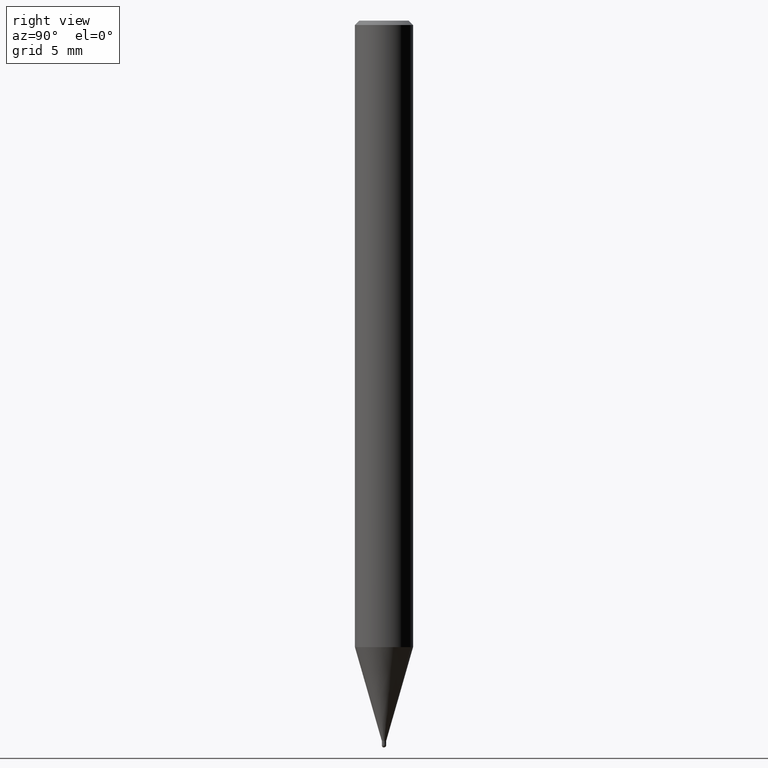
[diagram: clean part render]
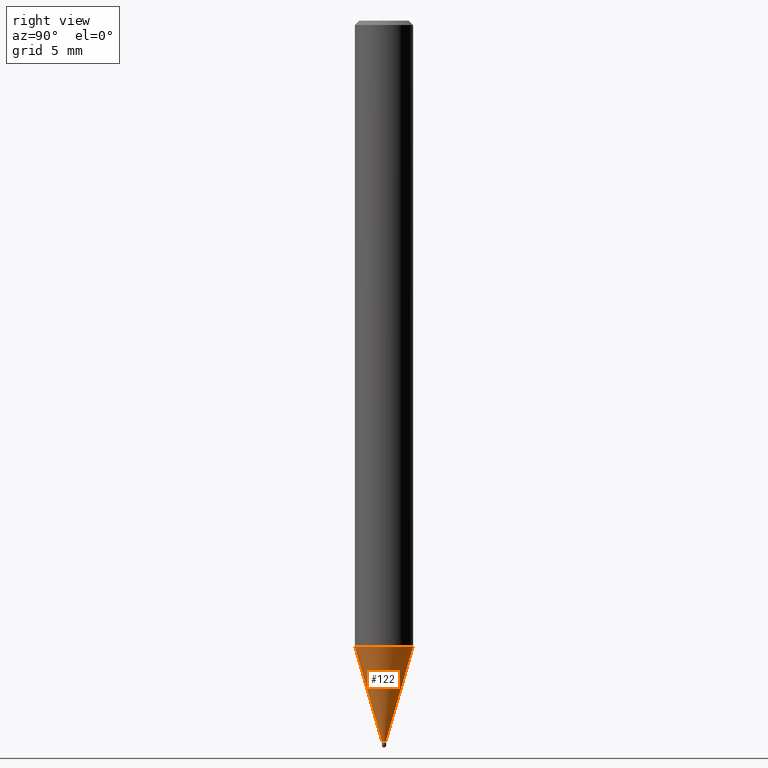
[diagram: same view with one face highlighted and labeled with its STEP entity id]
A machine part, right view. The second image highlights one B-rep face of the part: STEP entity #122.
In plain terms, the highlighted conical surface has half-angle 15.999 deg.
Its self-contained STEP definition (entity closure, byte-faithful):
#88=EDGE_CURVE('',#160,#112,#213,.T.);
#92=EDGE_CURVE('',#110,#160,#217,.T.);
#110=VERTEX_POINT('',#238);
#112=VERTEX_POINT('',#240);
#118=EDGE_CURVE('',#112,#162,#247,.T.);
#122=ADVANCED_FACE('',(#251),#252,.T.);
#160=VERTEX_POINT('',#297);
#162=VERTEX_POINT('',#299);
#180=EDGE_CURVE('',#110,#162,#319,.T.);
#213=CIRCLE('',#348,0.14995);
#217=LINE('',#353,#354);
#238=CARTESIAN_POINT('',(0.0,1.99995,-43.098));
#240=CARTESIAN_POINT('',(1.83629722755666E-017,-0.14995,-49.55));
#247=LINE('',#387,#388);
#251=FACE_OUTER_BOUND('',#393,.T.);
#252=CONICAL_SURFACE('',#394,1.07495,0.279241047070178);
#297=CARTESIAN_POINT('',(0.0,0.14995,-49.55));
#299=CARTESIAN_POINT('',(2.44915147732706E-016,-1.99995,-43.098));
#319=CIRCLE('',#478,1.99995);
#348=AXIS2_PLACEMENT_3D('',#494,#495,#496);
#353=CARTESIAN_POINT('',(-1.31639060004136E-016,1.07495,-46.324));
#354=VECTOR('',#497,1.0);
#387=CARTESIAN_POINT('',(1.31639060004136E-016,-1.07495,-46.324));
#388=VECTOR('',#530,1.0);
#393=EDGE_LOOP('',(#535,#536,#537,#538));
#394=AXIS2_PLACEMENT_3D('',#539,#540,#541);
#478=AXIS2_PLACEMENT_3D('',#635,#636,#637);
#494=CARTESIAN_POINT('',(0.0,0.0,-49.55));
#495=DIRECTION('',(0.0,0.0,-1.0));
#496=DIRECTION('',(0.0,1.0,0.0));
#497=DIRECTION('',(3.37533562982631E-017,-0.275626173201767,-0.961264902431244));
#530=DIRECTION('',(3.37533562982631E-017,-0.275626173201767,0.961264902431244));
#535=ORIENTED_EDGE('',*,*,#92,.F.);
#536=ORIENTED_EDGE('',*,*,#180,.T.);
#537=ORIENTED_EDGE('',*,*,#118,.F.);
#538=ORIENTED_EDGE('',*,*,#88,.F.);
#539=CARTESIAN_POINT('',(0.0,0.0,-46.324));
#540=DIRECTION('',(-0.0,-0.0,1.0));
#541=DIRECTION('',(0.0,1.0,0.0));
#635=CARTESIAN_POINT('',(0.0,0.0,-43.098));
#636=DIRECTION('',(0.0,0.0,-1.0));
#637=DIRECTION('',(0.0,1.0,0.0));